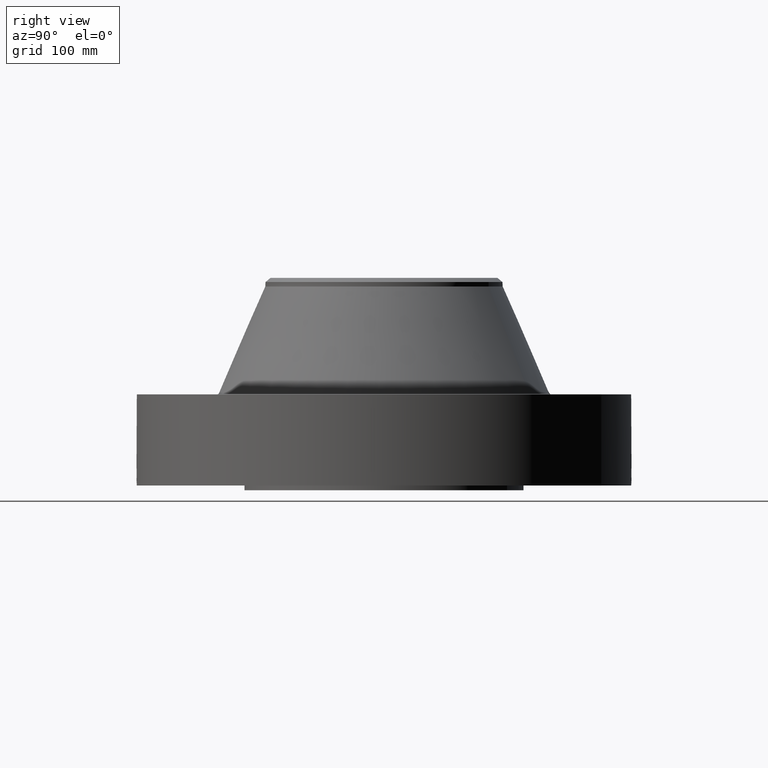
[diagram: clean part render]
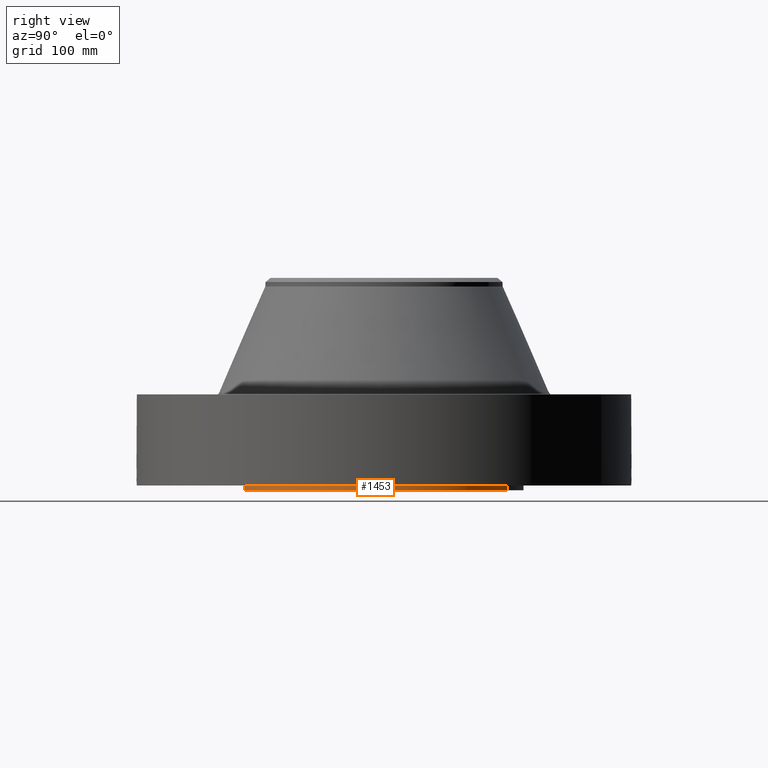
[diagram: same view with one face highlighted and labeled with its STEP entity id]
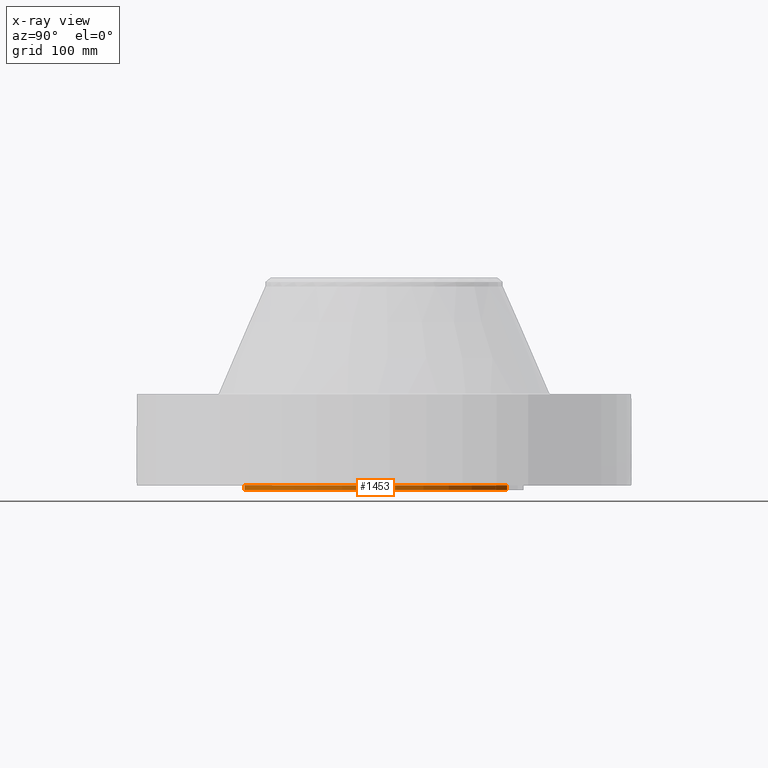
[diagram: x-ray of the same camera — body ghosted, the highlighted face saturated]
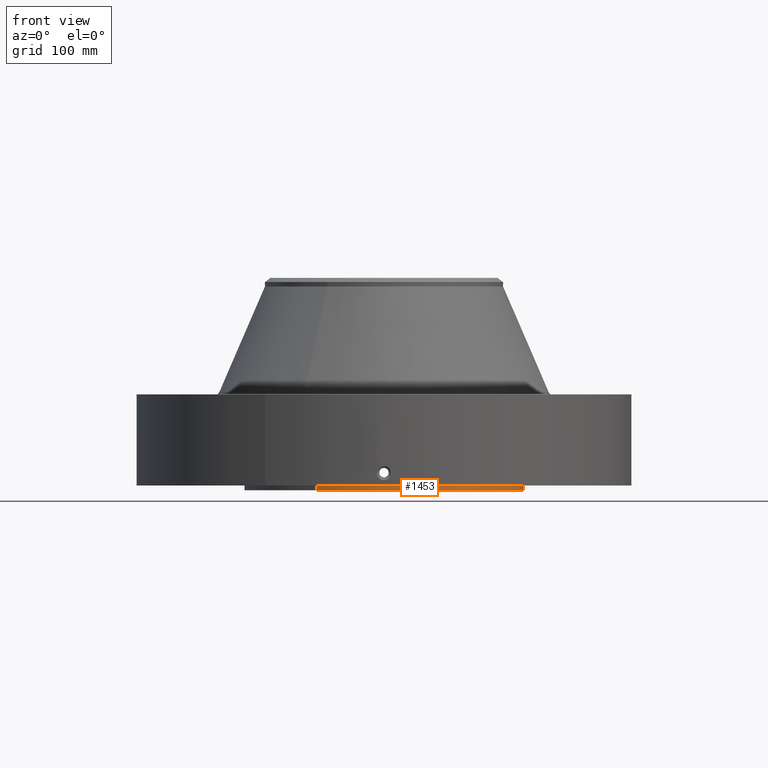
[diagram: same view with one face highlighted and labeled with its STEP entity id]
A machine part, right view. The second image highlights one B-rep face of the part: STEP entity #1453.
The next image is the same camera in x-ray: the body ghosted, the highlighted face saturated — about 0% of this face is hidden behind the body in this view.
A second angle (front view) of the same face is appended — the face is thin or edge-on in the first view.
In plain terms, the highlighted cylindrical surface (partial cylindrical patch) has radius 190.5 mm, axis along (0, 0, -1).
Its self-contained STEP definition (entity closure, byte-faithful):
#262=AXIS2_PLACEMENT_3D('Circle Axis2P3D',#260,#261,$) ;
#1426=AXIS2_PLACEMENT_3D('Cylinder Axis2P3D',#1423,#1424,#1425) ;
#1430=AXIS2_PLACEMENT_3D('Circle Axis2P3D',#1428,#1429,$) ;
#260=CARTESIAN_POINT('Axis2P3D Location',(0.,0.,0.250000000001)) ;
#264=CARTESIAN_POINT('Vertex',(3.59569153955,6.5818692142,0.250000000001)) ;
#266=CARTESIAN_POINT('Vertex',(-3.59569153955,-6.5818692142,0.250000000001)) ;
#1423=CARTESIAN_POINT('Axis2P3D Location',(0.,0.,5.68500000002)) ;
#1428=CARTESIAN_POINT('Axis2P3D Location',(0.,0.,1.1189649382E-015)) ;
#1432=CARTESIAN_POINT('Vertex',(3.59569153955,6.5818692142,1.1189649382E-015)) ;
#1434=CARTESIAN_POINT('Vertex',(-3.59569153955,-6.5818692142,1.1189649382E-015)) ;
#1437=CARTESIAN_POINT('Line Origine',(3.59569153955,6.5818692142,0.125000000001)) ;
#1442=CARTESIAN_POINT('Line Origine',(-3.59569153955,-6.5818692142,0.125000000001)) ;
#261=DIRECTION('Axis2P3D Direction',(0.,0.,-0.0393700787402)) ;
#1424=DIRECTION('Axis2P3D Direction',(0.,0.,-0.0393700787402)) ;
#1425=DIRECTION('Axis2P3D XDirection',(-0.0188750212049,-0.0345504945626,0.)) ;
#1429=DIRECTION('Axis2P3D Direction',(0.,0.,-0.0393700787402)) ;
#1438=DIRECTION('Vector Direction',(0.,0.,-0.0393700787402)) ;
#1443=DIRECTION('Vector Direction',(0.,0.,-0.0393700787402)) ;
#1439=VECTOR('Line Direction',#1438,0.0393700787402) ;
#1444=VECTOR('Line Direction',#1443,0.0393700787402) ;
#1448=ORIENTED_EDGE('',*,*,#1436,.F.) ;
#1449=ORIENTED_EDGE('',*,*,#1441,.T.) ;
#1450=ORIENTED_EDGE('',*,*,#268,.T.) ;
#1451=ORIENTED_EDGE('',*,*,#1446,.F.) ;
#1453=ADVANCED_FACE('PartBody',(#1452),#1427,.T.) ;
#263=CIRCLE('generated circle',#262,7.50000000003) ;
#1431=CIRCLE('generated circle',#1430,7.50000000003) ;
#1427=CYLINDRICAL_SURFACE('generated cylinder',#1426,7.50000000003) ;
#268=EDGE_CURVE('',#265,#267,#263,.T.) ;
#1436=EDGE_CURVE('',#1433,#1435,#1431,.T.) ;
#1441=EDGE_CURVE('',#1433,#265,#1440,.F.) ;
#1446=EDGE_CURVE('',#1435,#267,#1445,.F.) ;
#1447=EDGE_LOOP('',(#1448,#1449,#1450,#1451)) ;
#1452=FACE_OUTER_BOUND('',#1447,.T.) ;
#1440=LINE('Line',#1437,#1439) ;
#1445=LINE('Line',#1442,#1444) ;
#265=VERTEX_POINT('',#264) ;
#267=VERTEX_POINT('',#266) ;
#1433=VERTEX_POINT('',#1432) ;
#1435=VERTEX_POINT('',#1434) ;